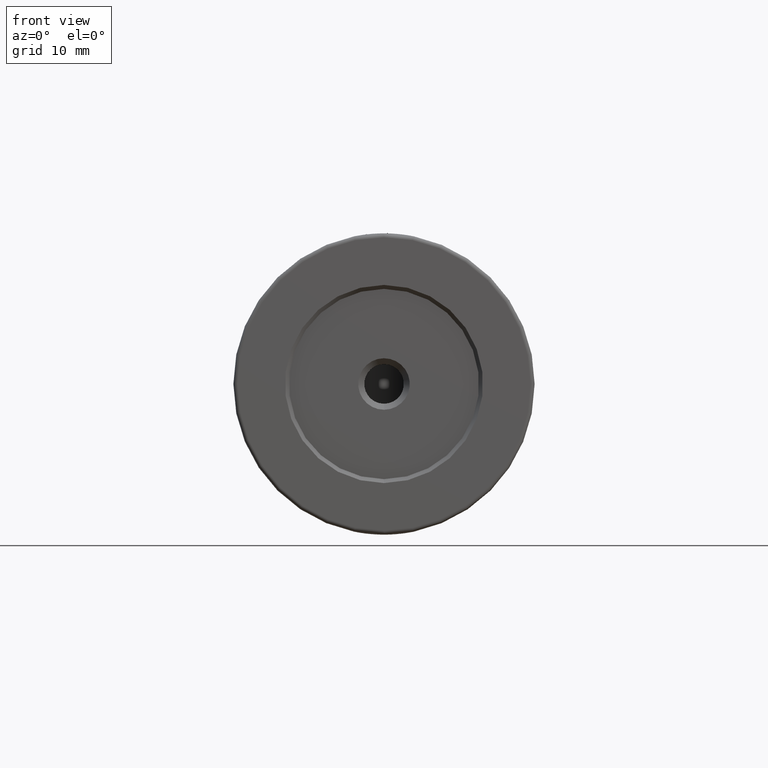
[diagram: clean part render]
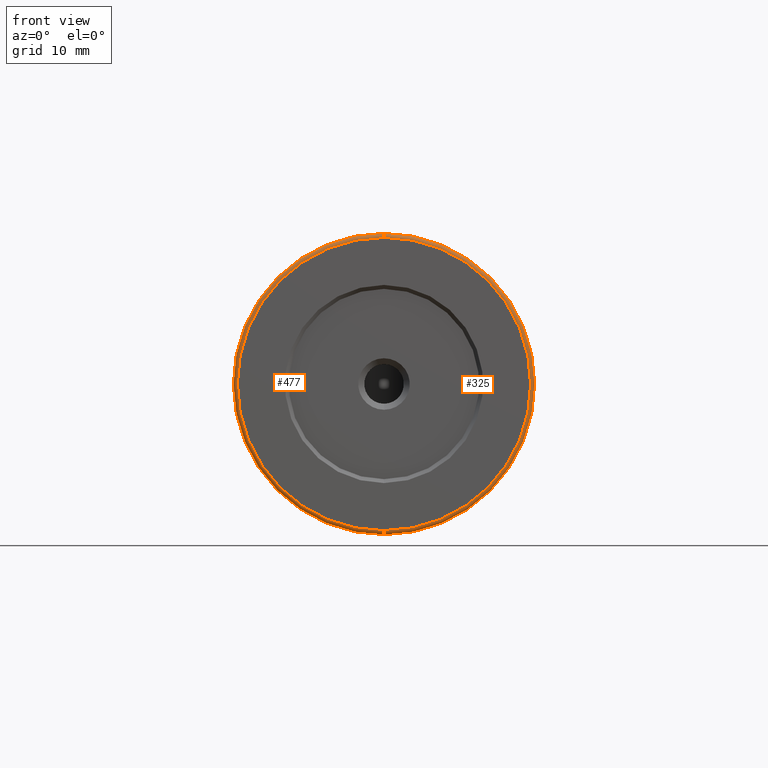
[diagram: same view with one multi-face feature highlighted, each face labeled with its STEP entity id]
A machine part, front view. The highlighted faces form ONE feature: a constant-radius fillet chain: 2 tangent blend faces with common blend radius 0.5 mm. The faces share edges in the B-rep.
Their STEP definitions:
[1] entity #325 (Torus):
#48 = ORIENTED_EDGE ( 'NONE', *, *, #614, .F. ) ;
#103 = VERTEX_POINT ( 'NONE', #290 ) ;
#106 = EDGE_CURVE ( 'NONE', #126, #294, #335, .T. ) ;
#116 = CARTESIAN_POINT ( 'NONE',  ( -85.22679983354142053, -41.26133999167427646, 400.0000000000000000 ) ) ;
#117 = CIRCLE ( 'NONE', #500, 18.50000000000001776 ) ;
#126 = VERTEX_POINT ( 'NONE', #382 ) ;
#127 = DIRECTION ( 'NONE',  ( -1.000000000000000000, 0.0000000000000000000, 0.0000000000000000000 ) ) ;
#137 = DIRECTION ( 'NONE',  ( 0.0000000000000000000, 0.0000000000000000000, -1.000000000000000000 ) ) ;
#169 = TOROIDAL_SURFACE ( 'NONE', #745, 18.50000000000000000, 0.5000000000000000000 ) ;
#186 = CIRCLE ( 'NONE', #485, 0.5000000000000004441 ) ;
#190 = ORIENTED_EDGE ( 'NONE', *, *, #898, .F. ) ;
#287 = VERTEX_POINT ( 'NONE', #316 ) ;
#288 = CARTESIAN_POINT ( 'NONE',  ( -85.22679983354142053, -41.26133999167427646, 418.5000000000000568 ) ) ;
#290 = CARTESIAN_POINT ( 'NONE',  ( -85.22679983354142053, -41.26133999167427646, 419.0000000000000568 ) ) ;
#294 = VERTEX_POINT ( 'NONE', #870 ) ;
#303 = AXIS2_PLACEMENT_3D ( 'NONE', #364, #920, #137 ) ;
#306 = CIRCLE ( 'NONE', #461, 19.00000000000001776 ) ;
#316 = CARTESIAN_POINT ( 'NONE',  ( -85.22679983354142053, -41.76133999167427646, 418.5000000000000568 ) ) ;
#319 = FACE_OUTER_BOUND ( 'NONE', #916, .T. ) ;
#325 = ADVANCED_FACE ( 'NONE', ( #319 ), #169, .T. ) ;
#335 = CIRCLE ( 'NONE', #303, 0.5000000000000004441 ) ;
#364 = CARTESIAN_POINT ( 'NONE',  ( -85.22679983354142053, -41.26133999167427646, 381.5000000000000000 ) ) ;
#382 = CARTESIAN_POINT ( 'NONE',  ( -85.22679983354142053, -41.76133999167427646, 381.5000000000000000 ) ) ;
#422 = DIRECTION ( 'NONE',  ( 0.0000000000000000000, 0.0000000000000000000, 1.000000000000000000 ) ) ;
#460 = DIRECTION ( 'NONE',  ( 0.0000000000000000000, 1.000000000000000000, 0.0000000000000000000 ) ) ;
#461 = AXIS2_PLACEMENT_3D ( 'NONE', #116, #460, #978 ) ;
#463 = EDGE_CURVE ( 'NONE', #103, #294, #306, .T. ) ;
#485 = AXIS2_PLACEMENT_3D ( 'NONE', #288, #127, #754 ) ;
#500 = AXIS2_PLACEMENT_3D ( 'NONE', #879, #804, #422 ) ;
#614 = EDGE_CURVE ( 'NONE', #287, #103, #186, .T. ) ;
#637 = CARTESIAN_POINT ( 'NONE',  ( -85.22679983354142053, -41.26133999167427646, 400.0000000000000000 ) ) ;
#745 = AXIS2_PLACEMENT_3D ( 'NONE', #637, #852, #773 ) ;
#754 = DIRECTION ( 'NONE',  ( 0.0000000000000000000, 0.0000000000000000000, 1.000000000000000000 ) ) ;
#773 = DIRECTION ( 'NONE',  ( 0.0000000000000000000, 0.0000000000000000000, 1.000000000000000000 ) ) ;
#804 = DIRECTION ( 'NONE',  ( -0.0000000000000000000, -1.000000000000000000, -0.0000000000000000000 ) ) ;
#821 = ORIENTED_EDGE ( 'NONE', *, *, #463, .F. ) ;
#852 = DIRECTION ( 'NONE',  ( 0.0000000000000000000, 1.000000000000000000, 0.0000000000000000000 ) ) ;
#870 = CARTESIAN_POINT ( 'NONE',  ( -85.22679983354142053, -41.26133999167427646, 381.0000000000000000 ) ) ;
#879 = CARTESIAN_POINT ( 'NONE',  ( -85.22679983354142053, -41.76133999167427646, 400.0000000000000000 ) ) ;
#898 = EDGE_CURVE ( 'NONE', #126, #287, #117, .T. ) ;
#916 = EDGE_LOOP ( 'NONE', ( #190, #946, #821, #48 ) ) ;
#920 = DIRECTION ( 'NONE',  ( 1.000000000000000000, -0.0000000000000000000, 1.224646799147353207E-16 ) ) ;
#946 = ORIENTED_EDGE ( 'NONE', *, *, #106, .T. ) ;
#978 = DIRECTION ( 'NONE',  ( 0.0000000000000000000, 0.0000000000000000000, 1.000000000000000000 ) ) ;
[2] entity #477 (Torus):
#54 = DIRECTION ( 'NONE',  ( 0.0000000000000000000, 0.0000000000000000000, 1.000000000000000000 ) ) ;
#72 = CARTESIAN_POINT ( 'NONE',  ( -85.22679983354142053, -41.26133999167427646, 400.0000000000000000 ) ) ;
#103 = VERTEX_POINT ( 'NONE', #290 ) ;
#106 = EDGE_CURVE ( 'NONE', #126, #294, #335, .T. ) ;
#121 = CIRCLE ( 'NONE', #699, 19.00000000000001776 ) ;
#126 = VERTEX_POINT ( 'NONE', #382 ) ;
#127 = DIRECTION ( 'NONE',  ( -1.000000000000000000, 0.0000000000000000000, 0.0000000000000000000 ) ) ;
#137 = DIRECTION ( 'NONE',  ( 0.0000000000000000000, 0.0000000000000000000, -1.000000000000000000 ) ) ;
#186 = CIRCLE ( 'NONE', #485, 0.5000000000000004441 ) ;
#197 = CARTESIAN_POINT ( 'NONE',  ( -85.22679983354142053, -41.26133999167427646, 400.0000000000000000 ) ) ;
#223 = EDGE_CURVE ( 'NONE', #294, #103, #121, .T. ) ;
#284 = FACE_OUTER_BOUND ( 'NONE', #416, .T. ) ;
#287 = VERTEX_POINT ( 'NONE', #316 ) ;
#288 = CARTESIAN_POINT ( 'NONE',  ( -85.22679983354142053, -41.26133999167427646, 418.5000000000000568 ) ) ;
#290 = CARTESIAN_POINT ( 'NONE',  ( -85.22679983354142053, -41.26133999167427646, 419.0000000000000568 ) ) ;
#294 = VERTEX_POINT ( 'NONE', #870 ) ;
#303 = AXIS2_PLACEMENT_3D ( 'NONE', #364, #920, #137 ) ;
#316 = CARTESIAN_POINT ( 'NONE',  ( -85.22679983354142053, -41.76133999167427646, 418.5000000000000568 ) ) ;
#323 = DIRECTION ( 'NONE',  ( 0.0000000000000000000, 0.0000000000000000000, 1.000000000000000000 ) ) ;
#335 = CIRCLE ( 'NONE', #303, 0.5000000000000004441 ) ;
#364 = CARTESIAN_POINT ( 'NONE',  ( -85.22679983354142053, -41.26133999167427646, 381.5000000000000000 ) ) ;
#367 = DIRECTION ( 'NONE',  ( 0.0000000000000000000, 1.000000000000000000, 0.0000000000000000000 ) ) ;
#377 = AXIS2_PLACEMENT_3D ( 'NONE', #197, #367, #54 ) ;
#382 = CARTESIAN_POINT ( 'NONE',  ( -85.22679983354142053, -41.76133999167427646, 381.5000000000000000 ) ) ;
#384 = EDGE_CURVE ( 'NONE', #287, #126, #778, .T. ) ;
#393 = DIRECTION ( 'NONE',  ( 0.0000000000000000000, 1.000000000000000000, 0.0000000000000000000 ) ) ;
#416 = EDGE_LOOP ( 'NONE', ( #467, #579, #632, #528 ) ) ;
#467 = ORIENTED_EDGE ( 'NONE', *, *, #106, .F. ) ;
#477 = ADVANCED_FACE ( 'NONE', ( #284 ), #815, .T. ) ;
#485 = AXIS2_PLACEMENT_3D ( 'NONE', #288, #127, #754 ) ;
#528 = ORIENTED_EDGE ( 'NONE', *, *, #223, .F. ) ;
#573 = DIRECTION ( 'NONE',  ( 0.0000000000000000000, 0.0000000000000000000, 1.000000000000000000 ) ) ;
#579 = ORIENTED_EDGE ( 'NONE', *, *, #384, .F. ) ;
#614 = EDGE_CURVE ( 'NONE', #287, #103, #186, .T. ) ;
#632 = ORIENTED_EDGE ( 'NONE', *, *, #614, .T. ) ;
#642 = CARTESIAN_POINT ( 'NONE',  ( -85.22679983354142053, -41.76133999167427646, 400.0000000000000000 ) ) ;
#699 = AXIS2_PLACEMENT_3D ( 'NONE', #72, #393, #323 ) ;
#754 = DIRECTION ( 'NONE',  ( 0.0000000000000000000, 0.0000000000000000000, 1.000000000000000000 ) ) ;
#778 = CIRCLE ( 'NONE', #874, 18.50000000000001776 ) ;
#815 = TOROIDAL_SURFACE ( 'NONE', #377, 18.50000000000000000, 0.5000000000000000000 ) ;
#870 = CARTESIAN_POINT ( 'NONE',  ( -85.22679983354142053, -41.26133999167427646, 381.0000000000000000 ) ) ;
#874 = AXIS2_PLACEMENT_3D ( 'NONE', #642, #950, #573 ) ;
#920 = DIRECTION ( 'NONE',  ( 1.000000000000000000, -0.0000000000000000000, 1.224646799147353207E-16 ) ) ;
#950 = DIRECTION ( 'NONE',  ( -0.0000000000000000000, -1.000000000000000000, -0.0000000000000000000 ) ) ;